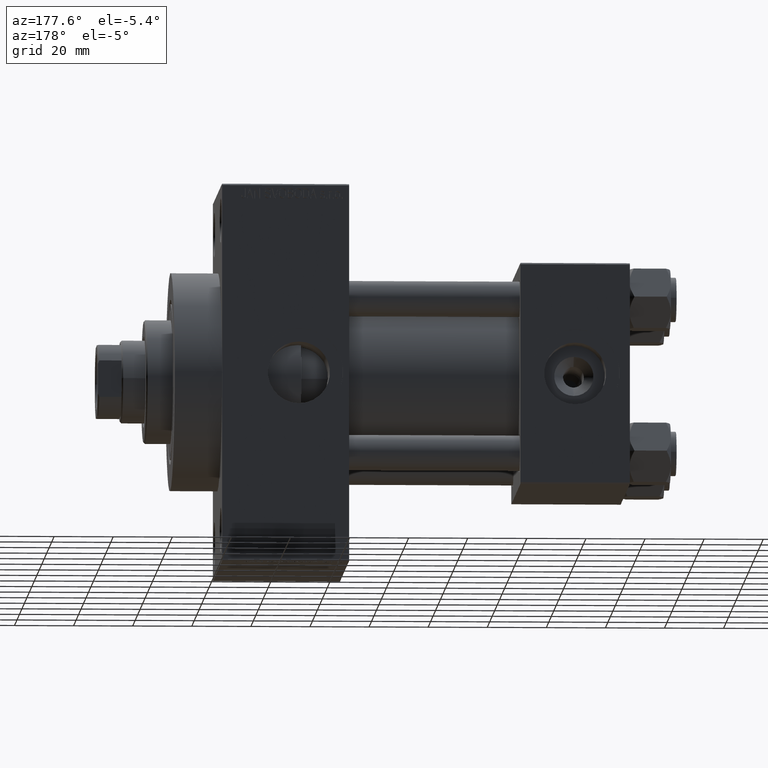
[diagram: clean part render]
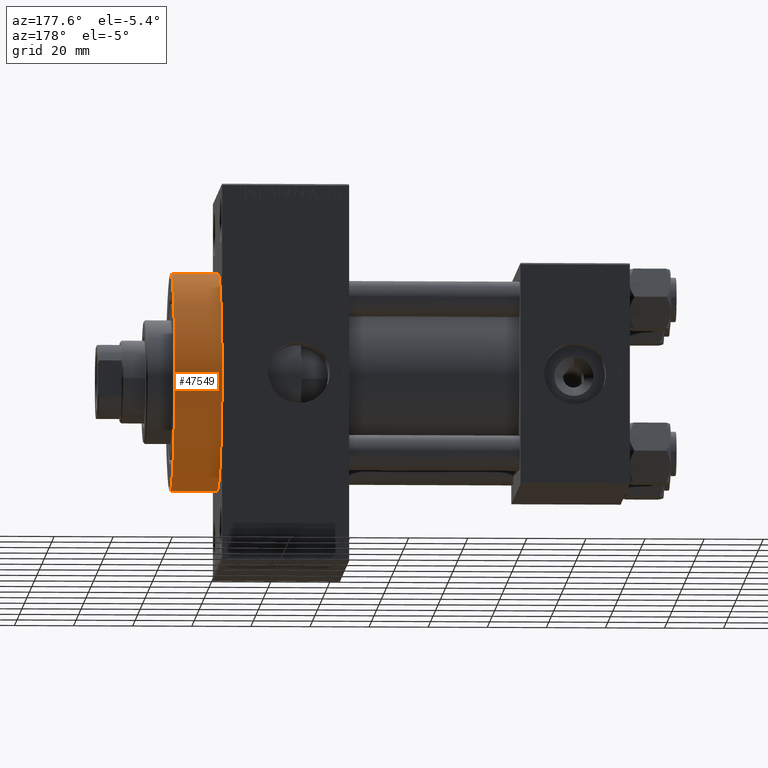
[diagram: same view with one face highlighted and labeled with its STEP entity id]
A machine part, auxiliary view. The second image highlights one B-rep face of the part: STEP entity #47549.
In plain terms, the highlighted cylindrical surface (partial cylindrical patch) has radius 37 mm, axis along (-1, -0, -0).
Its self-contained STEP definition (entity closure, byte-faithful):
#5229 = VERTEX_POINT ( 'NONE', #40485 ) ;
#5293 = AXIS2_PLACEMENT_3D ( 'NONE', #30878, #8090, #35601 ) ;
#8090 = DIRECTION ( 'NONE',  ( 1.000000000000000000, 0.000000000000000000, 0.000000000000000000 ) ) ;
#8093 = CARTESIAN_POINT ( 'NONE',  ( 138.0000000000000000, 0.000000000000000000, 37.00000000000000000 ) ) ;
#8402 = CIRCLE ( 'NONE', #5293, 37.00000000000000000 ) ;
#10947 = EDGE_CURVE ( 'NONE', #38012, #46930, #8402, .T. ) ;
#11195 = CIRCLE ( 'NONE', #44767, 37.00000000000000000 ) ;
#11473 = CYLINDRICAL_SURFACE ( 'NONE', #32045, 37.00000000000000000 ) ;
#13841 = CARTESIAN_POINT ( 'NONE',  ( 138.0000000000000000, 4.531193156845206793E-15, -37.00000000000000000 ) ) ;
#14176 = LINE ( 'NONE', #21427, #38712 ) ;
#14492 = DIRECTION ( 'NONE',  ( -1.000000000000000000, -0.000000000000000000, -0.000000000000000000 ) ) ;
#15517 = EDGE_CURVE ( 'NONE', #28216, #46930, #33850, .T. ) ;
#20913 = ORIENTED_EDGE ( 'NONE', *, *, #15517, .F. ) ;
#20927 = DIRECTION ( 'NONE',  ( -1.000000000000000000, -0.000000000000000000, -0.000000000000000000 ) ) ;
#21427 = CARTESIAN_POINT ( 'NONE',  ( 154.0000000000000284, 4.531193156845206793E-15, -37.00000000000000000 ) ) ;
#22568 = DIRECTION ( 'NONE',  ( -1.000000000000000000, -0.000000000000000000, -0.000000000000000000 ) ) ;
#25468 = ORIENTED_EDGE ( 'NONE', *, *, #10947, .T. ) ;
#25749 = FACE_OUTER_BOUND ( 'NONE', #36061, .T. ) ;
#27000 = EDGE_CURVE ( 'NONE', #5229, #28216, #11195, .T. ) ;
#28216 = VERTEX_POINT ( 'NONE', #29140 ) ;
#29140 = CARTESIAN_POINT ( 'NONE',  ( 154.0000000000000284, 0.000000000000000000, 37.00000000000000000 ) ) ;
#30098 = CARTESIAN_POINT ( 'NONE',  ( 154.0000000000000284, 0.000000000000000000, 37.00000000000000000 ) ) ;
#30878 = CARTESIAN_POINT ( 'NONE',  ( 138.0000000000000000, 0.000000000000000000, 0.000000000000000000 ) ) ;
#32045 = AXIS2_PLACEMENT_3D ( 'NONE', #45037, #14492, #45285 ) ;
#32565 = VECTOR ( 'NONE', #22568, 1000.000000000000000 ) ;
#33850 = LINE ( 'NONE', #30098, #32565 ) ;
#35601 = DIRECTION ( 'NONE',  ( 0.000000000000000000, 0.000000000000000000, -1.000000000000000000 ) ) ;
#36061 = EDGE_LOOP ( 'NONE', ( #44636, #48236, #25468, #20913 ) ) ;
#36446 = DIRECTION ( 'NONE',  ( 0.000000000000000000, 0.000000000000000000, -1.000000000000000000 ) ) ;
#38012 = VERTEX_POINT ( 'NONE', #13841 ) ;
#38712 = VECTOR ( 'NONE', #20927, 1000.000000000000000 ) ;
#40203 = DIRECTION ( 'NONE',  ( 1.000000000000000000, 0.000000000000000000, 0.000000000000000000 ) ) ;
#40485 = CARTESIAN_POINT ( 'NONE',  ( 154.0000000000000284, 4.531193156845206793E-15, -37.00000000000000000 ) ) ;
#40689 = EDGE_CURVE ( 'NONE', #5229, #38012, #14176, .T. ) ;
#44636 = ORIENTED_EDGE ( 'NONE', *, *, #27000, .F. ) ;
#44767 = AXIS2_PLACEMENT_3D ( 'NONE', #47452, #40203, #36446 ) ;
#45037 = CARTESIAN_POINT ( 'NONE',  ( 154.0000000000000284, 0.000000000000000000, 0.000000000000000000 ) ) ;
#45285 = DIRECTION ( 'NONE',  ( 0.000000000000000000, 0.000000000000000000, 1.000000000000000000 ) ) ;
#46930 = VERTEX_POINT ( 'NONE', #8093 ) ;
#47452 = CARTESIAN_POINT ( 'NONE',  ( 154.0000000000000284, 0.000000000000000000, 0.000000000000000000 ) ) ;
#47549 = ADVANCED_FACE ( 'NONE', ( #25749 ), #11473, .T. ) ;
#48236 = ORIENTED_EDGE ( 'NONE', *, *, #40689, .T. ) ;